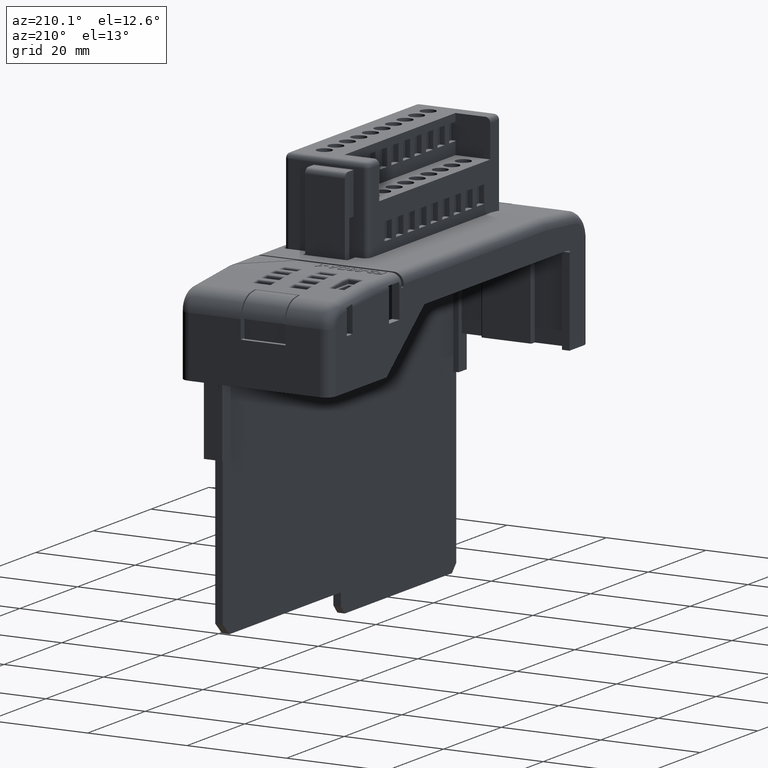
[diagram: clean part render]
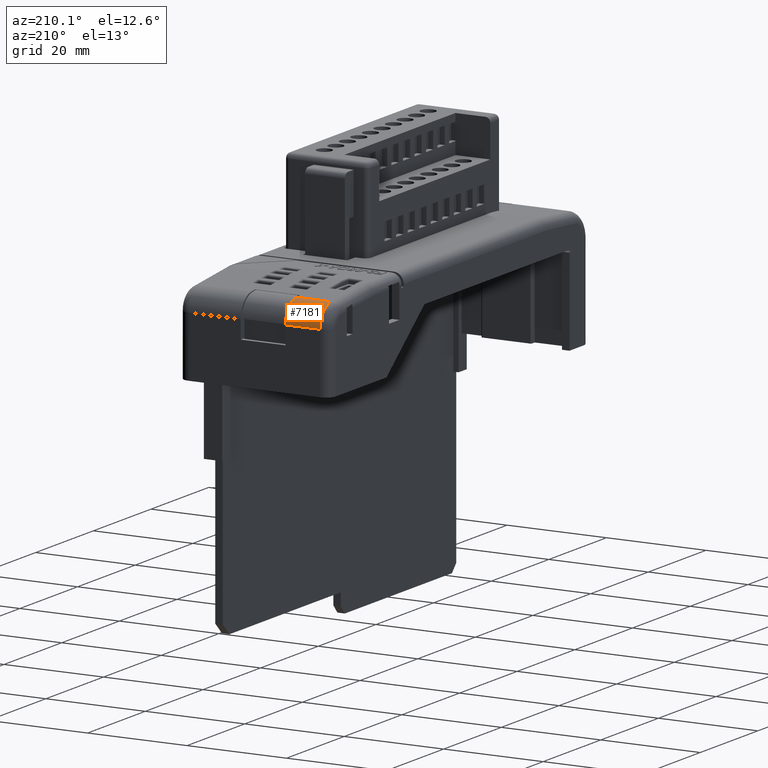
[diagram: same view with one face highlighted and labeled with its STEP entity id]
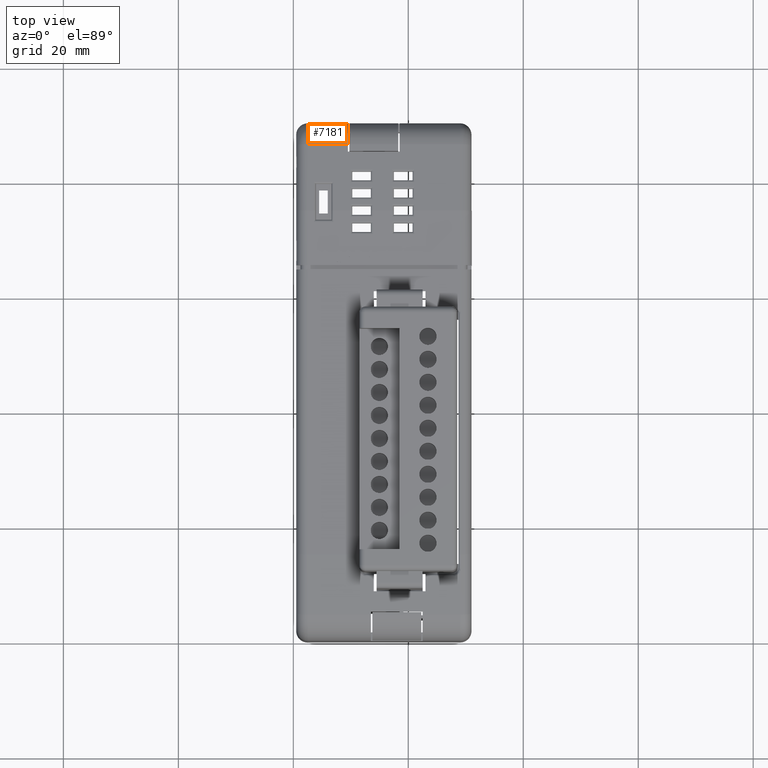
[diagram: same view with one face highlighted and labeled with its STEP entity id]
A machine part, auxiliary view. The second image highlights one B-rep face of the part: STEP entity #7181.
A second angle (top view) of the same face is appended — the face is thin or edge-on in the first view.
In plain terms, the highlighted cylindrical surface (edge-blend (fillet) strip) has radius 4.116 mm, axis along (-1, 0, 0).
Its self-contained STEP definition (entity closure, byte-faithful):
#7104 = EDGE_CURVE ( 'NONE', #7105, #7106, #16432, .T. ) ;
#7105 = VERTEX_POINT ( 'NONE', #16428 ) ;
#7106 = VERTEX_POINT ( 'NONE', #16427 ) ;
#7156 = ORIENTED_EDGE ( 'NONE', *, *, #7157, .F. ) ;
#7157 = EDGE_CURVE ( 'NONE', #7158, #7159, #16595, .T. ) ;
#7158 = VERTEX_POINT ( 'NONE', #16591 ) ;
#7159 = VERTEX_POINT ( 'NONE', #16590 ) ;
#7160 = ORIENTED_EDGE ( 'NONE', *, *, #7161, .T. ) ;
#7161 = EDGE_CURVE ( 'NONE', #7158, #7105, #16588, .T. ) ;
#7162 = ORIENTED_EDGE ( 'NONE', *, *, #7104, .T. ) ;
#7163 = ORIENTED_EDGE ( 'NONE', *, *, #7164, .T. ) ;
#7164 = EDGE_CURVE ( 'NONE', #7106, #7159, #16582, .T. ) ;
#7181 = ADVANCED_FACE ( 'NONE', ( #16643 ), #16627, .T. ) ;
#7182 = EDGE_LOOP ( 'NONE', ( #7156, #7160, #7162, #7163 ) ) ;
#16427 = CARTESIAN_POINT ( 'NONE',  ( 2.500000000000005800, 49.47293079737083600, -0.2452455676475659400 ) ) ;
#16428 = CARTESIAN_POINT ( 'NONE',  ( 9.500000000000001800, 49.47293079737083600, -0.2452455676475658300 ) ) ;
#16429 = DIRECTION ( 'NONE',  ( -1.000000000000000000, 0.0000000000000000000, 0.0000000000000000000 ) ) ;
#16430 = VECTOR ( 'NONE', #16429, 1000.000000000000000 ) ;
#16431 = CARTESIAN_POINT ( 'NONE',  ( 31.00000000000000000, 49.47293079737083600, -0.2452455676475659400 ) ) ;
#16432 = LINE ( 'NONE', #16431, #16430 ) ;
#16579 = DIRECTION ( 'NONE',  ( 0.0000000000000000000, 0.0000000000000000000, -1.000000000000000000 ) ) ;
#16580 = DIRECTION ( 'NONE',  ( 1.000000000000000000, -0.0000000000000000000, -0.0000000000000000000 ) ) ;
#16581 = AXIS2_PLACEMENT_3D ( 'NONE', #16589, #16580, #16579 ) ;
#16582 = CIRCLE ( 'NONE', #16581, 4.116030715247512200 ) ;
#16584 = DIRECTION ( 'NONE',  ( 0.0000000000000000000, 0.0000000000000000000, -1.000000000000000000 ) ) ;
#16585 = DIRECTION ( 'NONE',  ( -1.000000000000000000, -0.0000000000000000000, -0.0000000000000000000 ) ) ;
#16586 = CARTESIAN_POINT ( 'NONE',  ( 9.500000000000001800, 45.35844399414035200, -0.1325193732507959400 ) ) ;
#16587 = AXIS2_PLACEMENT_3D ( 'NONE', #16586, #16585, #16584 ) ;
#16588 = CIRCLE ( 'NONE', #16587, 4.116030715247512200 ) ;
#16589 = CARTESIAN_POINT ( 'NONE',  ( 2.499999999999992000, 45.35844399414035200, -0.1325193732507959400 ) ) ;
#16590 = CARTESIAN_POINT ( 'NONE',  ( 2.499999999999998700, 45.76829092650315500, 3.963055597482097800 ) ) ;
#16591 = CARTESIAN_POINT ( 'NONE',  ( 9.500000000000001800, 45.76829092650315500, 3.963055597482093400 ) ) ;
#16592 = DIRECTION ( 'NONE',  ( -1.000000000000000000, 0.0000000000000000000, 0.0000000000000000000 ) ) ;
#16593 = VECTOR ( 'NONE', #16592, 1000.000000000000000 ) ;
#16594 = CARTESIAN_POINT ( 'NONE',  ( 31.00000000000000000, 45.76829092650315500, 3.963055597482097800 ) ) ;
#16595 = LINE ( 'NONE', #16594, #16593 ) ;
#16627 = CYLINDRICAL_SURFACE ( 'NONE', #16628, 4.116030715247512200 ) ;
#16628 = AXIS2_PLACEMENT_3D ( 'NONE', #16685, #16684, #16683 ) ;
#16643 = FACE_OUTER_BOUND ( 'NONE', #7182, .T. ) ;
#16683 = DIRECTION ( 'NONE',  ( 0.0000000000000000000, 0.0000000000000000000, 1.000000000000000000 ) ) ;
#16684 = DIRECTION ( 'NONE',  ( -1.000000000000000000, 0.0000000000000000000, 0.0000000000000000000 ) ) ;
#16685 = CARTESIAN_POINT ( 'NONE',  ( 31.00000000000000000, 45.35844399414035200, -0.1325193732507959400 ) ) ;